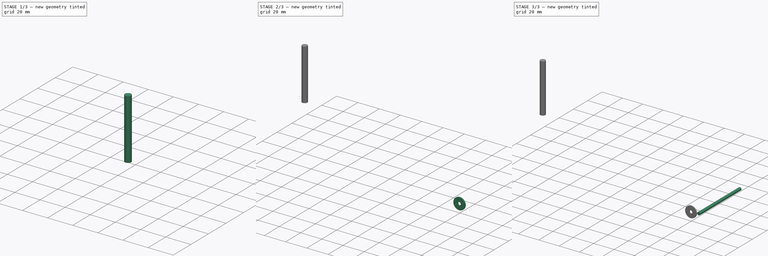
[diagram: build sequence overview — one tinted view per stage of 3, left to right]
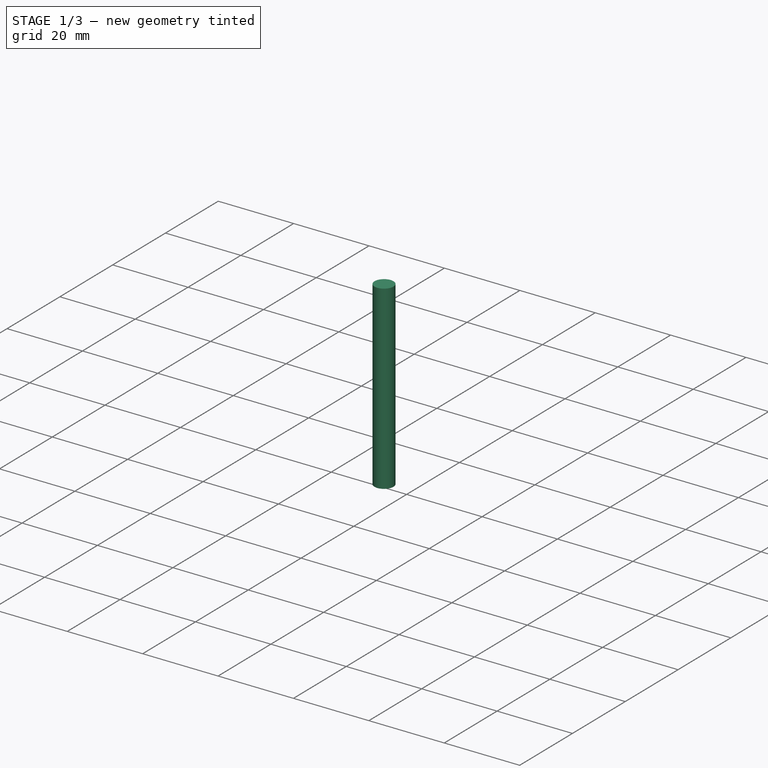
[diagram: stage 1 of 3 — iso view after this stage's code; geometry added in this stage tinted green]
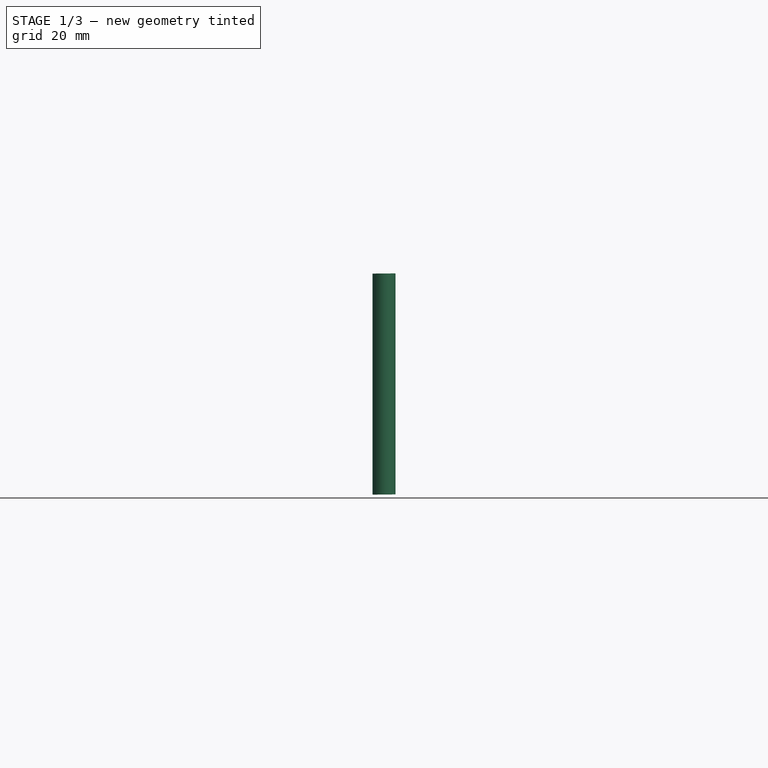
[diagram: stage 1 of 3 — front view after this stage's code; geometry added in this stage tinted green]
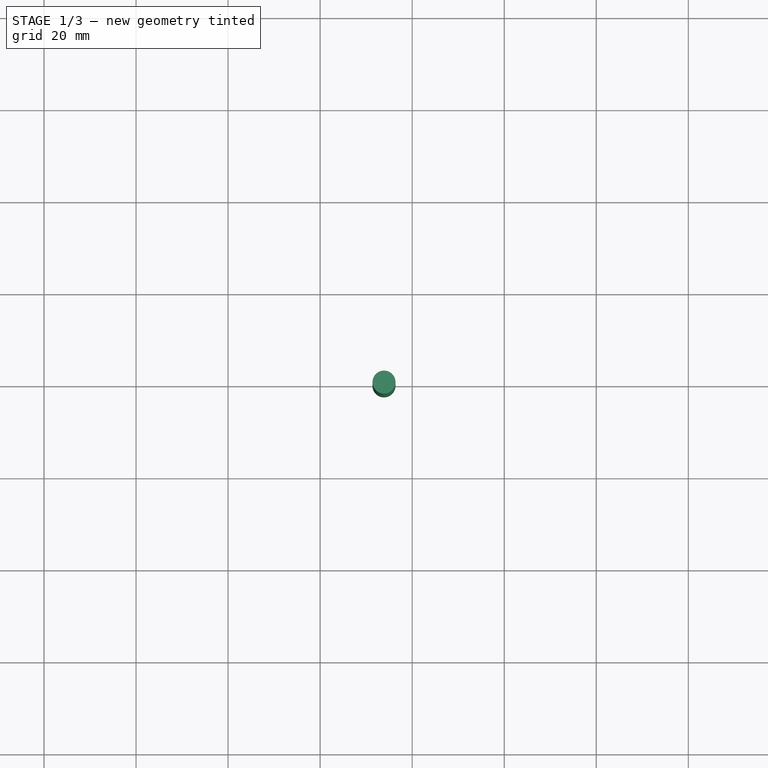
[diagram: stage 1 of 3 — top view after this stage's code; geometry added in this stage tinted green]
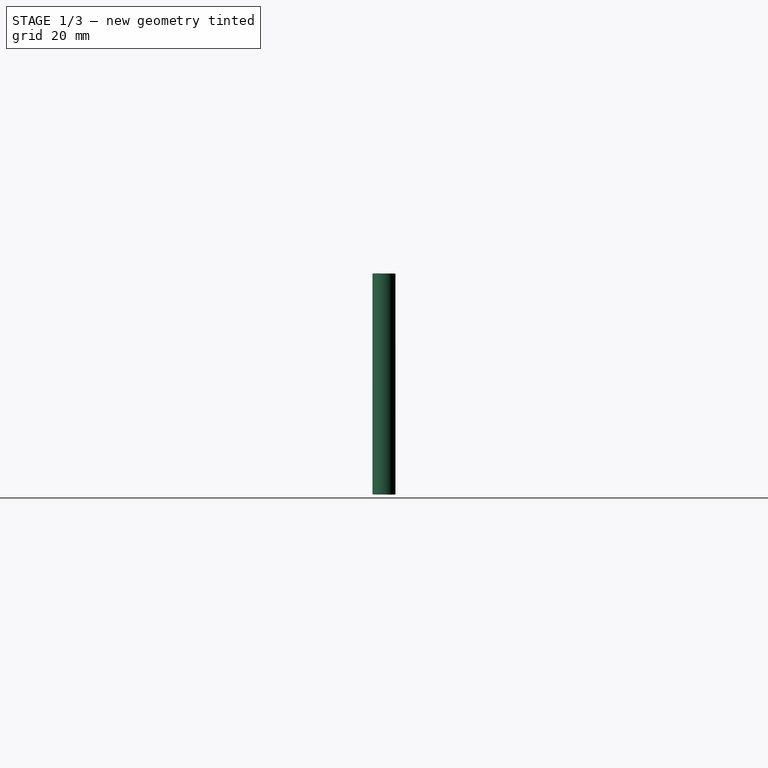
[diagram: stage 1 of 3 — right view after this stage's code; geometry added in this stage tinted green]
FCSTD DOCUMENT  (FreeCAD 0.19R24366 (Git))
Label: rudder_coarse_1
License: All rights reserved
LicenseURL: http://en.wikipedia.org/wiki/All_rights_reserved
objects: Sketcher::SketchObject×6, Part::Extrusion×5, App::Part×3, Image::ImagePlane×2, PartDesign::FeatureBase×1, PartDesign::Body×1
note: 13 computed .brp shape members not serialized (recipe doc carries the construction recipe); baked Part::Feature solids carry a one-line shape summary decoded from their .brp

FEATURE [App::Part] Part  label="PartRudderWithPost"
  Group = -> [Extrude,Sketch001,Extrude001,Sketch]
  Origin = -> Origin
FEATURE [Sketcher::SketchObject] Sketch014
  FullyConstrained = false
  Placement = pos=(45.664,-0.0649673,72.7031) rot=(-0.007022,-0.001094,0.999975;1.56956rad)
  sketch-geometry (1):
    g0: Circle CenterX=0 CenterY=191.792 CenterZ=0 NormalX=0 NormalY=0 NormalZ=1 AngleXU=0 Radius=2.5
  constraints (2):
    c: PointOnObject(g0,g-2)
    c: Radius(g0) = 2.5
FEATURE [Part::Extrusion] Extrude002
  Base = -> Sketch014
  Dir = (0,0,1)
  DirMode = 0
  FaceMakerClass = Part::FaceMakerBullseye
  LengthFwd = 48
  LengthRev = 0
  Solid = true
  Symmetric = true
FEATURE [App::Part] Part002  label="PartRudderConnector"
  Group = -> [Sketch018,Extrude006,Sketch017,Extrude005]
  Origin = -> Origin002
FEATURE [Sketcher::SketchObject] Sketch019
  ExternalGeometry = -> [Extrude002]
  FullyConstrained = true
  MapMode = 5
  Placement = pos=(-0.780985,0.571169,96.3228) rot=(-0.590327,-0.807161,0.002393;0.010045rad)
  Support = -> [Extrude002]
  sketch-geometry (1):
    g0: Circle CenterX=-145.346 CenterY=-0.391104 CenterZ=0 NormalX=0 NormalY=0 NormalZ=1 AngleXU=0 Radius=1.5
  constraints (3):
    c: Diameter(g0) = 3
    c: Coincident(g0,g-3)
    c: Diameter(g-3) = 5
FEATURE [PartDesign::FeatureBase] BaseFeature
  BaseFeature = -> Extrude002
FEATURE [PartDesign::Body] Body  label="PostHoleJacketBody"
  BaseFeature = -> Extrude002
  Group = -> [BaseFeature,Sketch019]
  Origin = -> Origin003
  Tip = -> BaseFeature
FEATURE [App::Part] Part001  label="PostHoleJacket"
  Group = -> [Body]
  Origin = -> Origin001
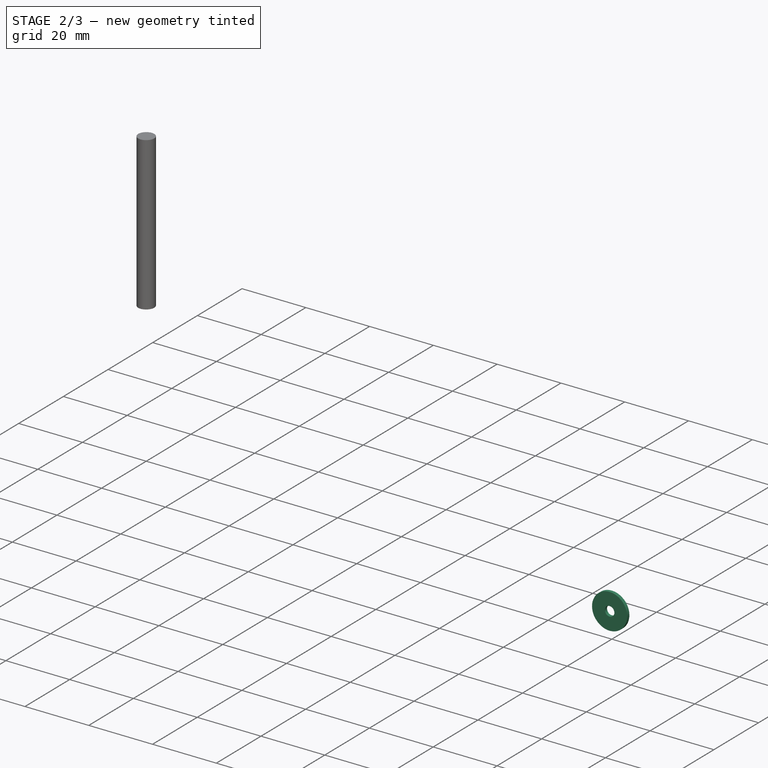
[diagram: stage 2 of 3 — iso view after this stage's code; geometry added in this stage tinted green]
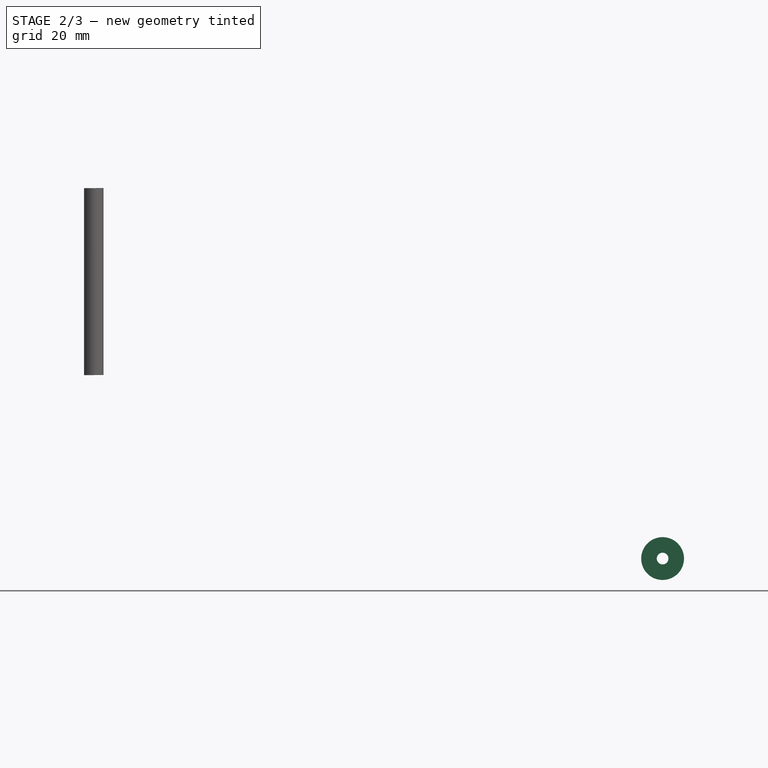
[diagram: stage 2 of 3 — front view after this stage's code; geometry added in this stage tinted green]
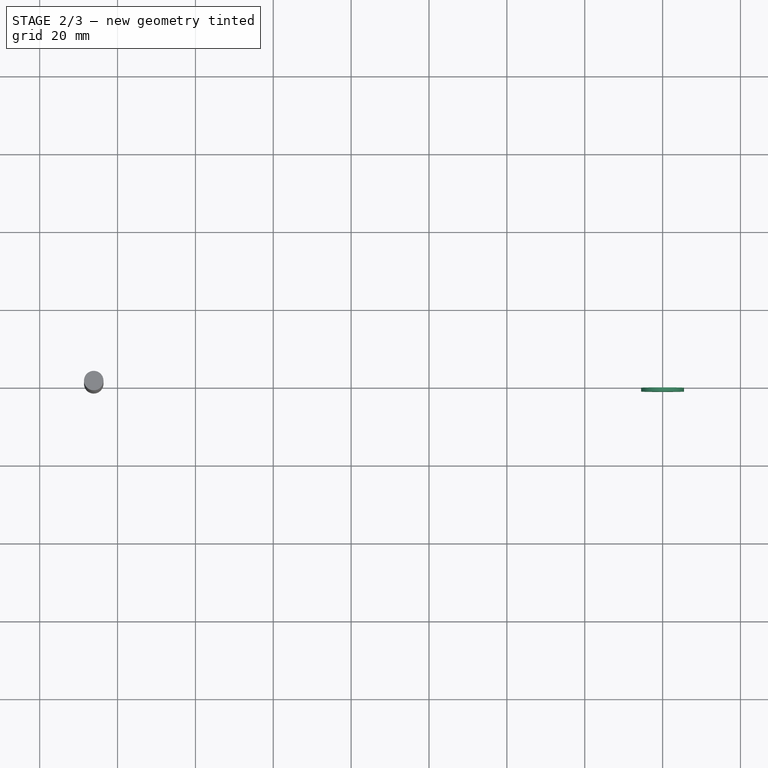
[diagram: stage 2 of 3 — top view after this stage's code; geometry added in this stage tinted green]
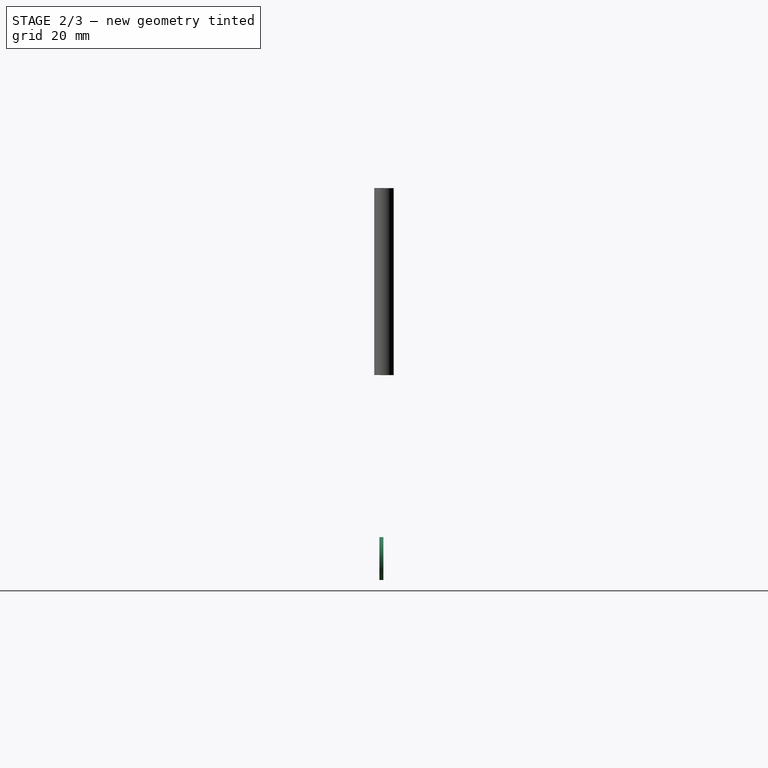
[diagram: stage 2 of 3 — right view after this stage's code; geometry added in this stage tinted green]
FEATURE [Image::ImagePlane] ImagePlane001  label="RudderConnector"
  Placement = pos=(-2.35,0,2.6) rot=(-1,0,0;4.71239rad)
  XSize = 57.8573
  YSize = 57.8573
FEATURE [Sketcher::SketchObject] Sketch018
  FullyConstrained = false
  Placement = pos=(0,0,0) rot=(1,0,0;1.5708rad)
  sketch-geometry (13):
    g0: LineSegment StartX=-18.3077 StartY=2.40747 StartZ=0 EndX=-6.02783 EndY=4.31937 EndZ=0
    g1: LineSegment StartX=-3.97641 StartY=6.22764 StartZ=0 EndX=-1.18261 EndY=18.3382 EndZ=0
    g2: LineSegment StartX=2.74256 StartY=18.1953 StartZ=0 EndX=5.43496 EndY=0.843309 EndZ=0
    g3: LineSegment StartX=-1.19806 StartY=-5.36793 StartZ=0 EndX=-18.4357 EndY=-1.5207 EndZ=0
    g4: ArcOfCircle CenterX=-18 CenterY=0.431279 CenterZ=0 NormalX=0 NormalY=0 NormalZ=1 AngleXU=0 Radius=2 StartAngle=1.72525 EndAngle=4.4928
    g5: ArcOfCircle CenterX=0 CenterY=0 CenterZ=0 NormalX=0 NormalY=0 NormalZ=1 AngleXU=0 Radius=5.5 StartAngle=4.4928 EndAngle=6.43712
    g6: ArcOfCircle CenterX=0.766208 CenterY=17.8887 CenterZ=0 NormalX=0 NormalY=0 NormalZ=1 AngleXU=0 Radius=2 StartAngle=0.153936 EndAngle=2.91487
    g7: Circle CenterX=0 CenterY=0 CenterZ=0 NormalX=0 NormalY=0 NormalZ=1 AngleXU=0 Radius=1.5
    g8: Circle CenterX=-18 CenterY=0.431279 CenterZ=0 NormalX=0 NormalY=0 NormalZ=1 AngleXU=0 Radius=1
    g9: Circle CenterX=-14 CenterY=0.275124 CenterZ=0 NormalX=0 NormalY=0 NormalZ=1 AngleXU=0 Radius=1.02606
    g10: Circle CenterX=0.766208 CenterY=17.8887 CenterZ=0 NormalX=0 NormalY=0 NormalZ=1 AngleXU=0 Radius=1
    g11: Circle CenterX=0.585844 CenterY=13.8887 CenterZ=0 NormalX=0 NormalY=0 NormalZ=1 AngleXU=0 Radius=1
    g12: ArcOfCircle CenterX=-6.41243 CenterY=6.7896 CenterZ=0 NormalX=0 NormalY=0 NormalZ=1 AngleXU=0 Radius=2.5 StartAngle=4.86684 EndAngle=6.05646
  constraints (23):
    c: DistanceX(g4,g5) = 18
    c: Coincident(g7,g5)
    c: Radius(g7) = 1.5
    c: Coincident(g8,g4)
    c: Coincident(g10,g6)
    c: Radius(g8) = 1
    c: DistanceX(g9,g5) = 14
    c: Tangent(g5,g3) = 1.5708
    c: Tangent(g4,g3) = 1.5708
    c: Tangent(g5,g2) = 1.5708
    c: Radius(g5) = 5.5
    c: Tangent(g6,g1) = 1.5708
    c: Tangent(g6,g2) = 1.5708
    c: Radius(g10) = 1
    c: Tangent(g0,g12) = -1.5708
    c: Tangent(g1,g12) = -1.5708
    c: Radius(g11) = 1
    c: Radius(g6) = 2
    c: DistanceY(g11,g6) = 4
    c: Radius(g4) = 2
    c: Coincident(g-1,g5)
    c: Tangent(g4,g0) = 1.5708
    c: Radius(g12) = 2.5
FEATURE [Part::Extrusion] Extrude005
  Base = -> Sketch018
  Dir = (0,1,0)
  DirMode = 0
  FaceMakerClass = Part::FaceMakerBullseye
  LengthFwd = 3
  LengthRev = 0
  Solid = true
  Symmetric = false
FEATURE [Sketcher::SketchObject] Sketch017
  FullyConstrained = true
  MapMode = 5
  Placement = pos=(0,0,0) rot=(1,0,0;1.5708rad)
  Support = -> [Extrude005]
  sketch-geometry (2):
    g0: Circle CenterX=0 CenterY=0 CenterZ=0 NormalX=0 NormalY=0 NormalZ=1 AngleXU=0 Radius=5.5
    g1: Circle CenterX=0 CenterY=0 CenterZ=0 NormalX=0 NormalY=0 NormalZ=1 AngleXU=0 Radius=1.5
  constraints (4):
    c: Coincident(g0,g-1)
    c: Coincident(g1,g0)
    c: Radius(g1) = 1.5
    c: Radius(g0) = 5.5
FEATURE [Part::Extrusion] Extrude006
  Base = -> Sketch017
  Dir = (0,1,0)
  DirMode = 0
  FaceMakerClass = Part::FaceMakerBullseye
  LengthFwd = -1
  LengthRev = 0
  Solid = true
  Symmetric = false
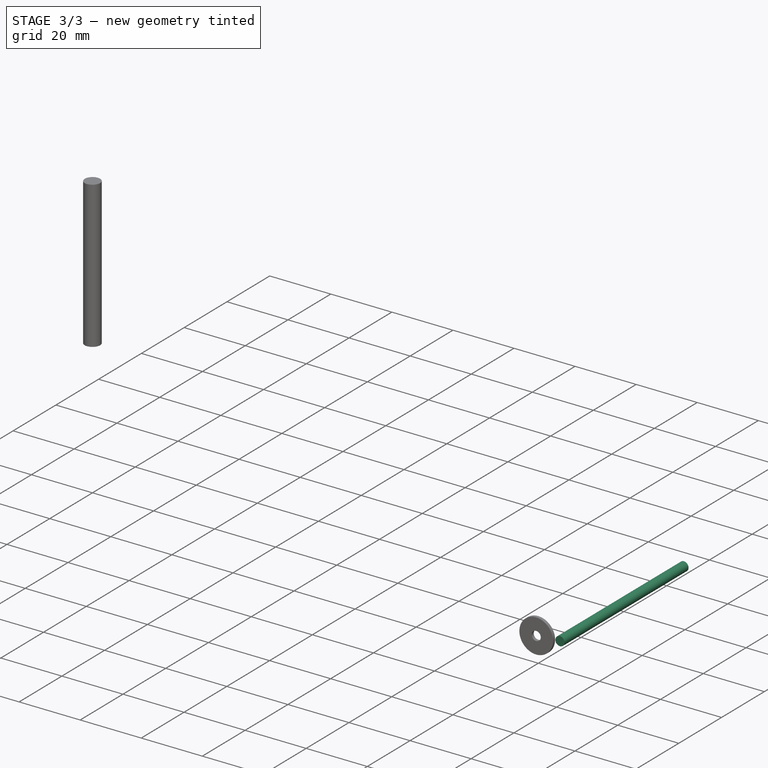
[diagram: stage 3 of 3 — iso view after this stage's code; geometry added in this stage tinted green]
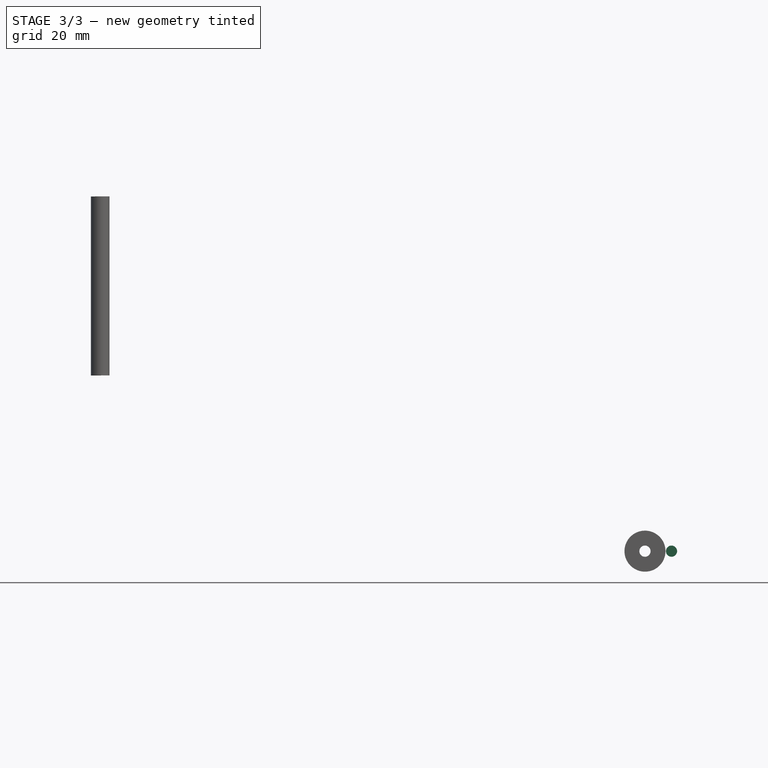
[diagram: stage 3 of 3 — front view after this stage's code; geometry added in this stage tinted green]
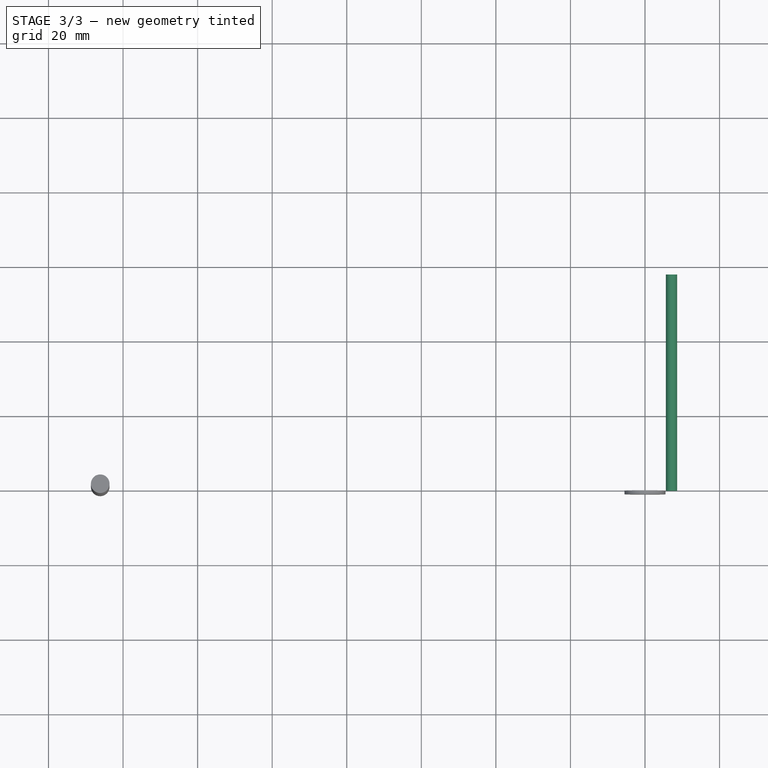
[diagram: stage 3 of 3 — top view after this stage's code; geometry added in this stage tinted green]
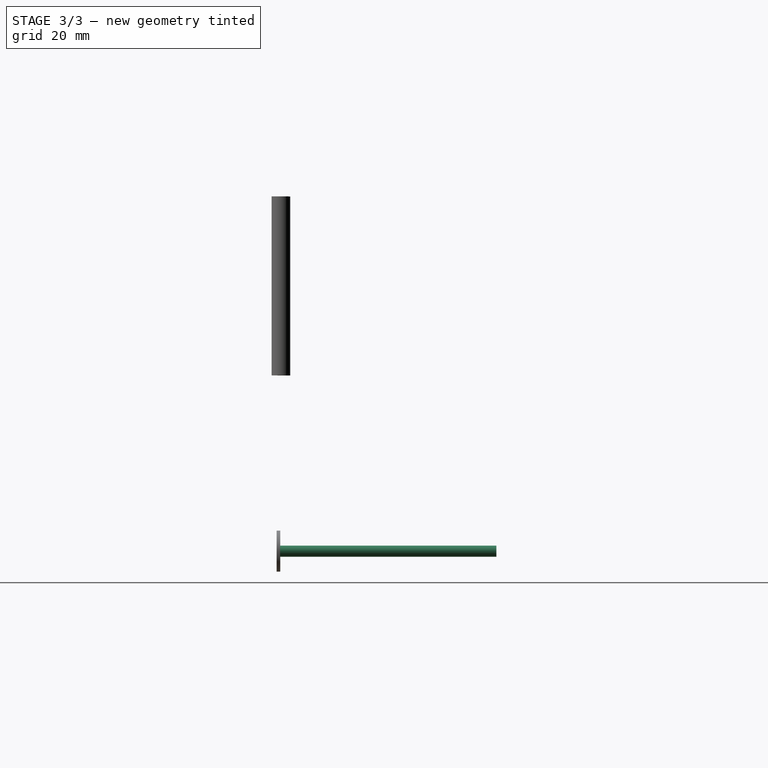
[diagram: stage 3 of 3 — right view after this stage's code; geometry added in this stage tinted green]
FEATURE [Image::ImagePlane] ImagePlane  label="RudderSourceImagePlane"
  XSize = 140.897
  YSize = 140.897
FEATURE [Sketcher::SketchObject] Sketch
  FullyConstrained = false
  MapMode = 2
  Support = -> [ImagePlane]
  sketch-geometry (4):
    g0: LineSegment StartX=-21.1422 StartY=-0.0475752 StartZ=0 EndX=16.8578 EndY=-0.0475752 EndZ=0
    g1: LineSegment StartX=16.8578 StartY=-0.0475752 StartZ=0 EndX=16.8578 EndY=-52.0476 EndZ=0
    g2: LineSegment StartX=16.8578 StartY=-52.0476 StartZ=0 EndX=-12.1422 EndY=-48.0476 EndZ=0
    g3: LineSegment StartX=-12.1422 StartY=-48.0476 StartZ=0 EndX=-21.1422 EndY=-0.0475752 EndZ=0
  constraints (10):
    c: Horizontal(g0)
    c: Coincident(g1,g0)
    c: Vertical(g1)
    c: Coincident(g3,g0)
    c: DistanceX(g2,g1) = 29
    c: Coincident(g2,g3)
    c: Coincident(g2,g1)
    c: DistanceY(g1,g0) = 52
    c: DistanceY(g2,g0) = 48
    c: DistanceX(g0,g0) = 38
FEATURE [Part::Extrusion] Extrude  label="RudderExtrude"
  Base = -> Sketch
  Dir = (0,0,1)
  DirLink = -> XY_Plane
  DirMode = 2
  FaceMakerClass = Part::FaceMakerBullseye
  LengthFwd = 5
  LengthRev = 0
  Solid = true
  Symmetric = true
FEATURE [Sketcher::SketchObject] Sketch001
  FullyConstrained = false
  MapMode = 5
  Placement = pos=(0,-0.0475752,0) rot=(0,0.707107,0.707107;3.14159rad)
  Support = -> [Extrude]
  sketch-geometry (1):
    g0: Circle CenterX=-7.11491 CenterY=0 CenterZ=0 NormalX=0 NormalY=0 NormalZ=1 AngleXU=0 Radius=1.5
  constraints (2):
    c: Radius(g0) = 1.5
    c: PointOnObject(g0,g-1)
FEATURE [Part::Extrusion] Extrude001  label="PostExtrude"
  Base = -> Sketch001
  Dir = (0,-1,0)
  DirMode = 0
  FaceMakerClass = Part::FaceMakerBullseye
  LengthFwd = -58
  LengthRev = 0
  Solid = true
  Symmetric = false
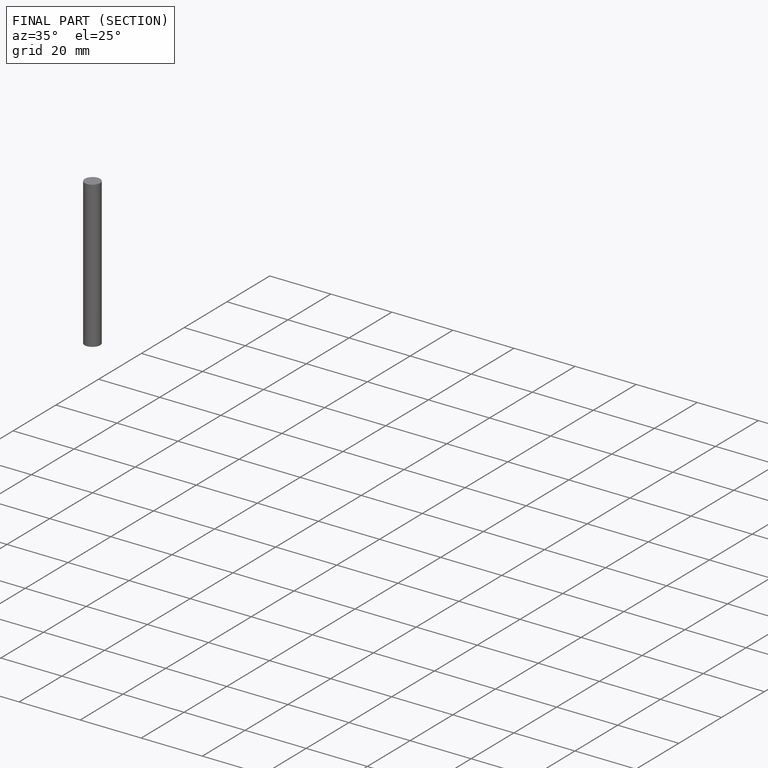
[diagram: finished part — half-section view (interior)]
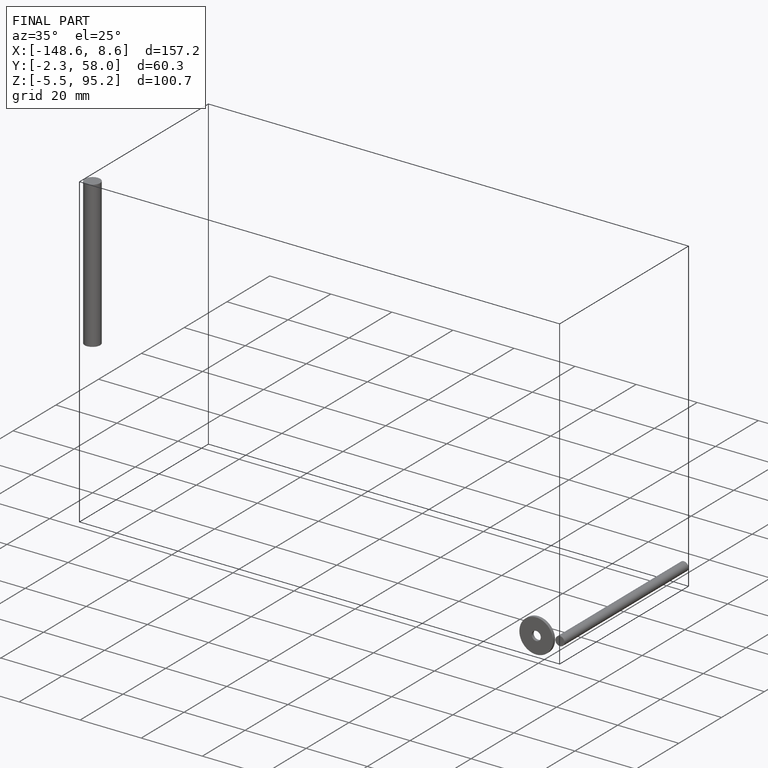
[diagram: finished part — iso view with bounding-box wireframe]
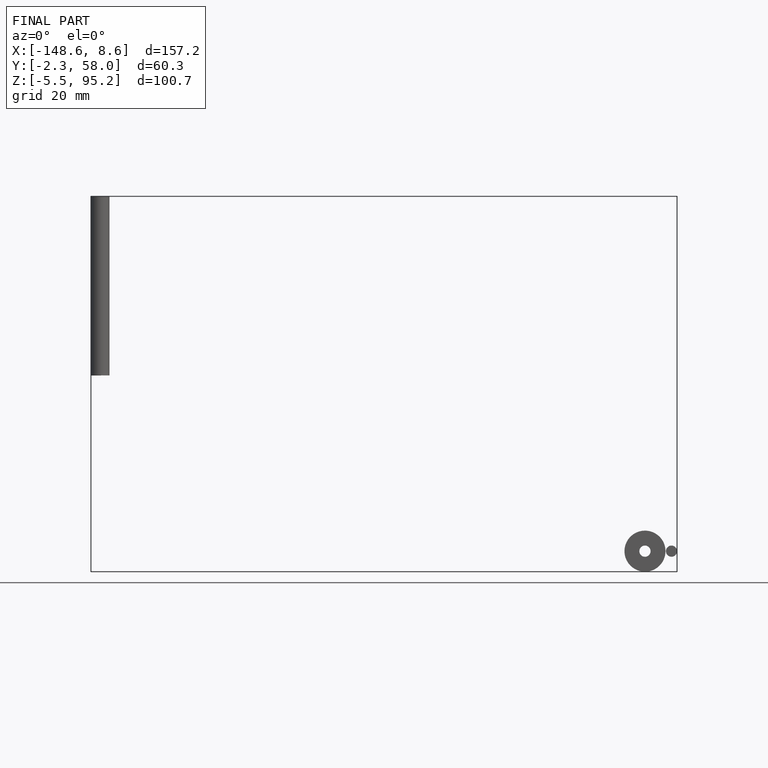
[diagram: finished part — front view with bounding-box wireframe]
